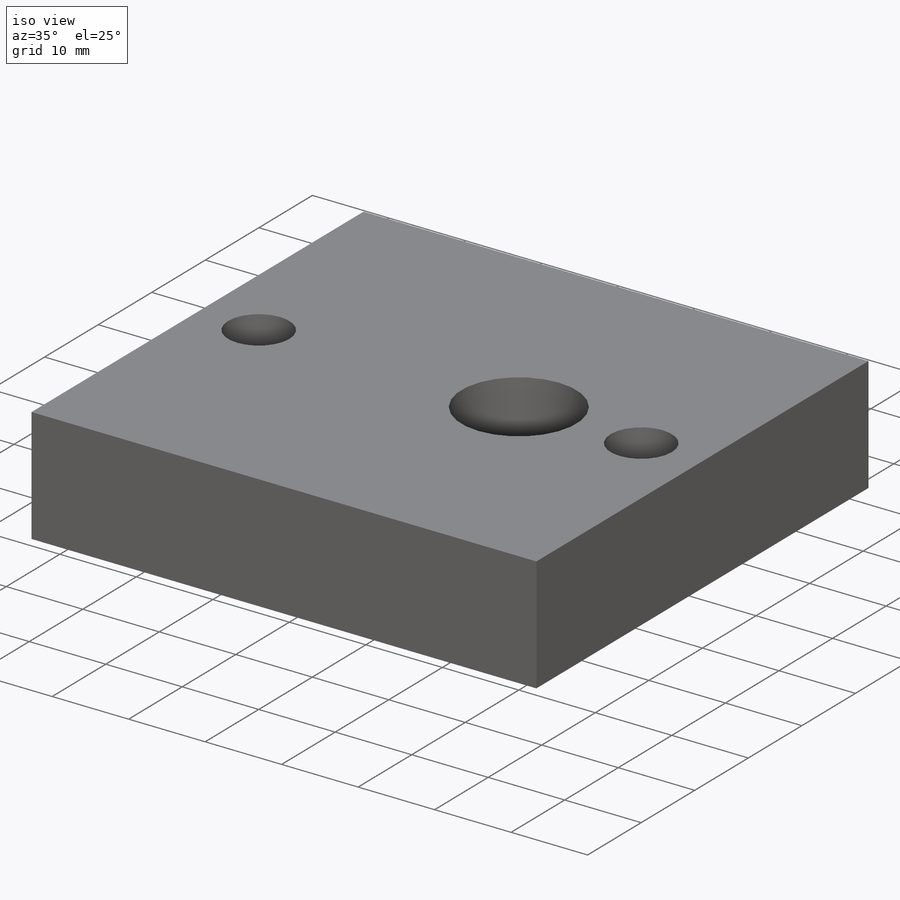
[diagram: iso view]
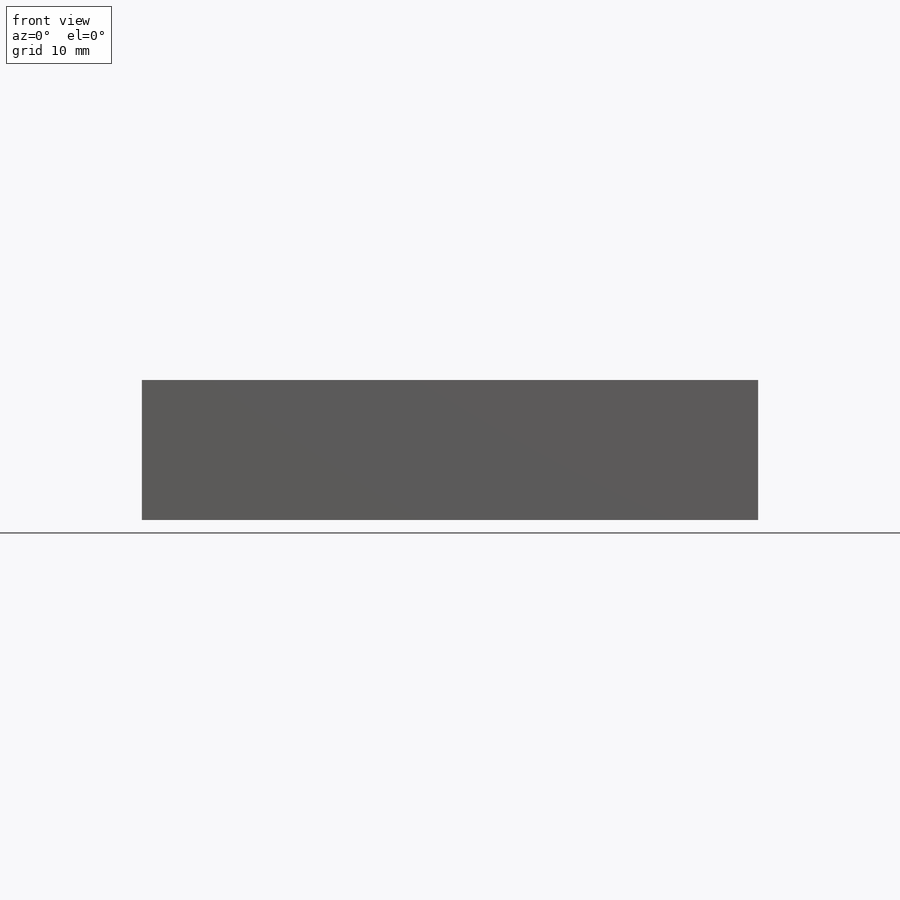
[diagram: front view]
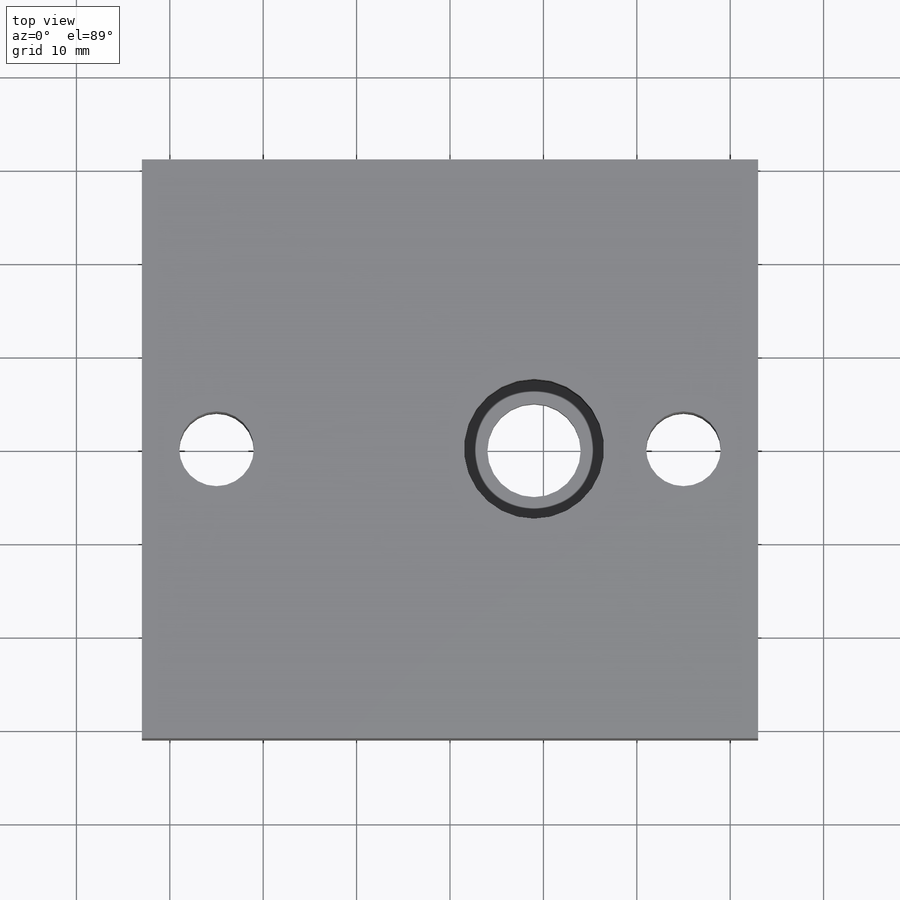
[diagram: top view]
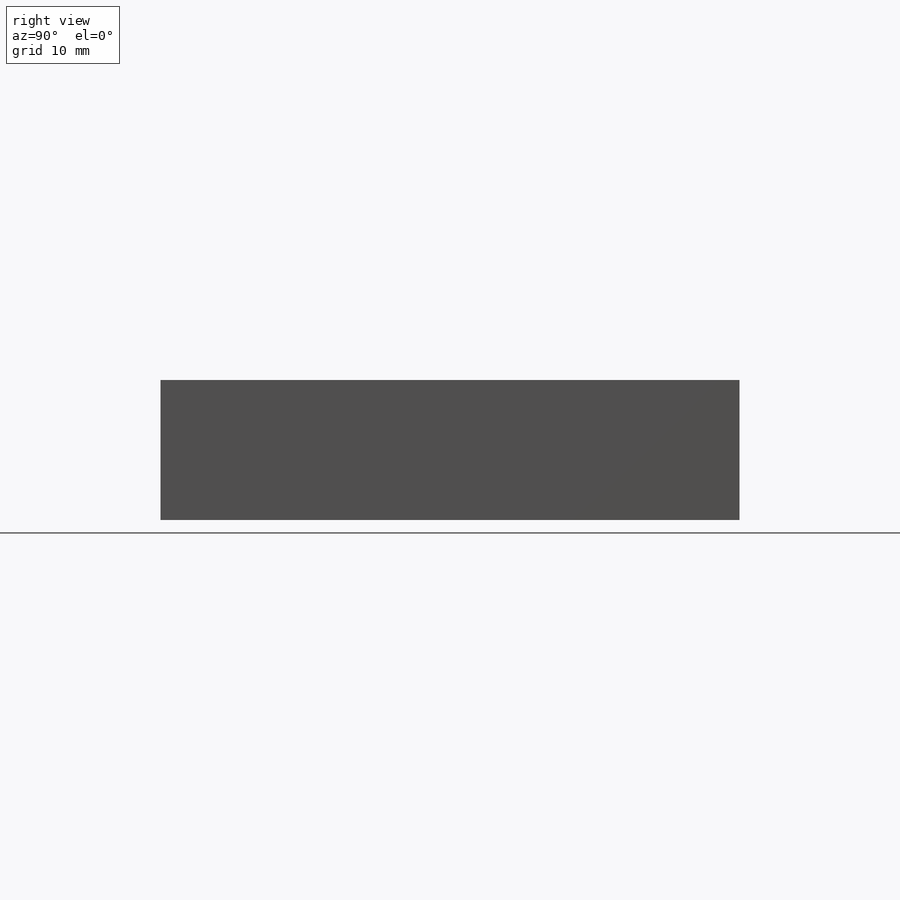
[diagram: right view]
SOLIDWORKS PART (.sldprt)
format: sldprt  version: not decoded by parser v0  size: 156,160 bytes
history: native  units: mm
features: plane x3, sketch x3, cut_extrude x2, material x1, extrude x1 (+10 scaffold rows collapsed)
feature tree (20):
  scaffold x10  (default folders/planes/origin — collapsed)
  material  "Material <sin especificar>"
  plane  "Alzado"
  plane  "Planta"
  plane  "Vista lateral"
  sketch  "Croquis1"  dims[D1=62.0mm D2=66.0mm]
  extrude  "Saliente-Extruir1"  Depth=15mm
  sketch  "Croquis2"  dims[c1.D1=10.0mm c1.D2=8.0mm c1.D3=8.0mm c2.D1=10.0mm c2.D4=50.0mm c2.D5=8.0mm c2.D6=16.0mm]
  cut_extrude  "Cortar-Extruir1"  Depth=15mm
  sketch  "Croquis3"  dims[D1=15.0mm]
  cut_extrude  "Cortar-Extruir2"  Depth=10mm
decode coverage: 6 of 6 modeling features carry decoded parameters
note: suppression state not decoded; provenance and decode notes live in map.json
